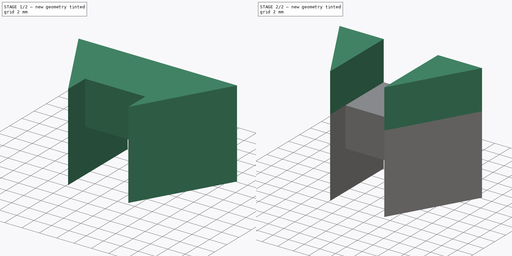
[diagram: build sequence overview — one tinted view per stage of 2, left to right]
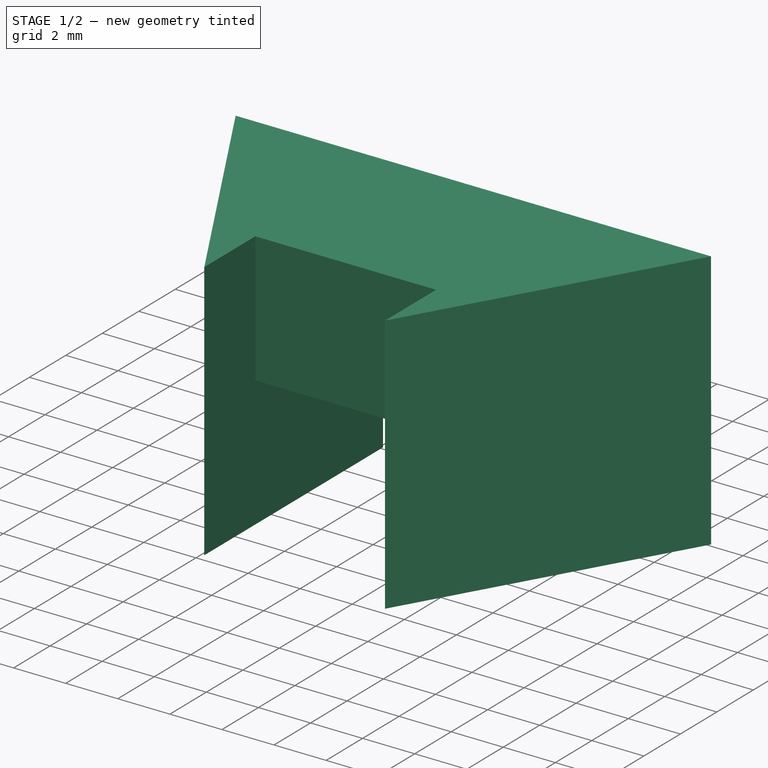
[diagram: stage 1 of 2 — iso view after this stage's code; geometry added in this stage tinted green]
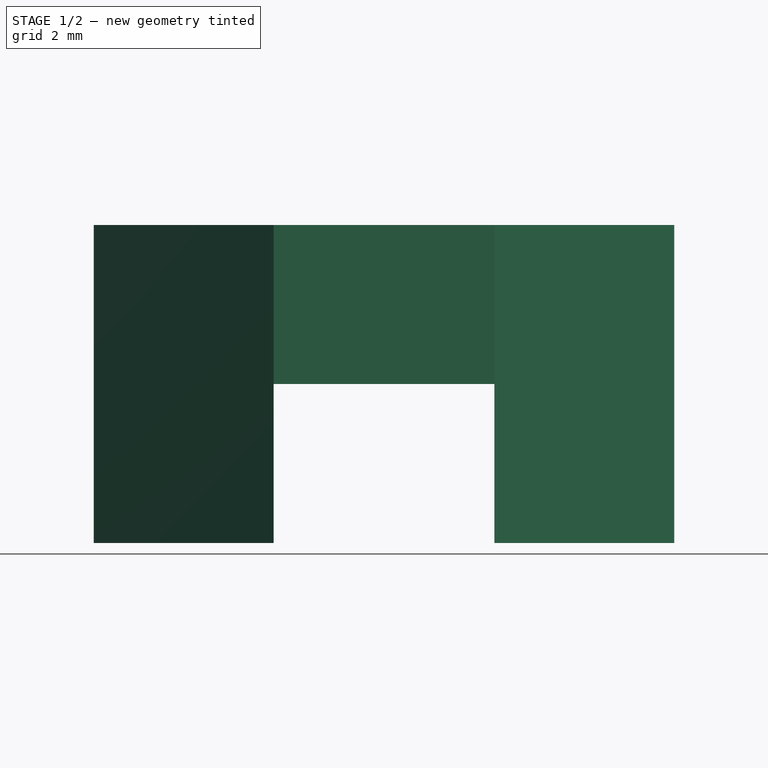
[diagram: stage 1 of 2 — front view after this stage's code; geometry added in this stage tinted green]
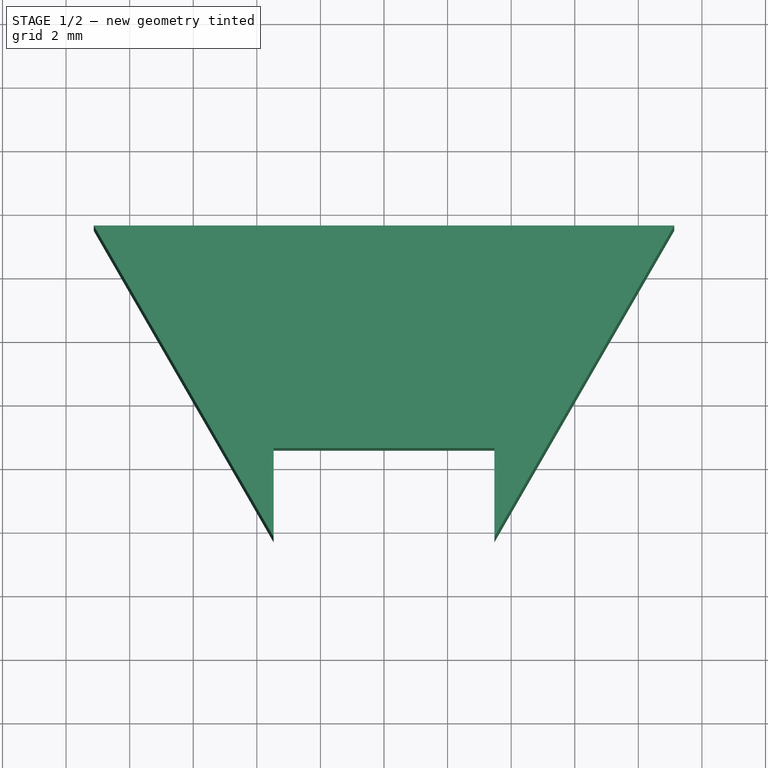
[diagram: stage 1 of 2 — top view after this stage's code; geometry added in this stage tinted green]
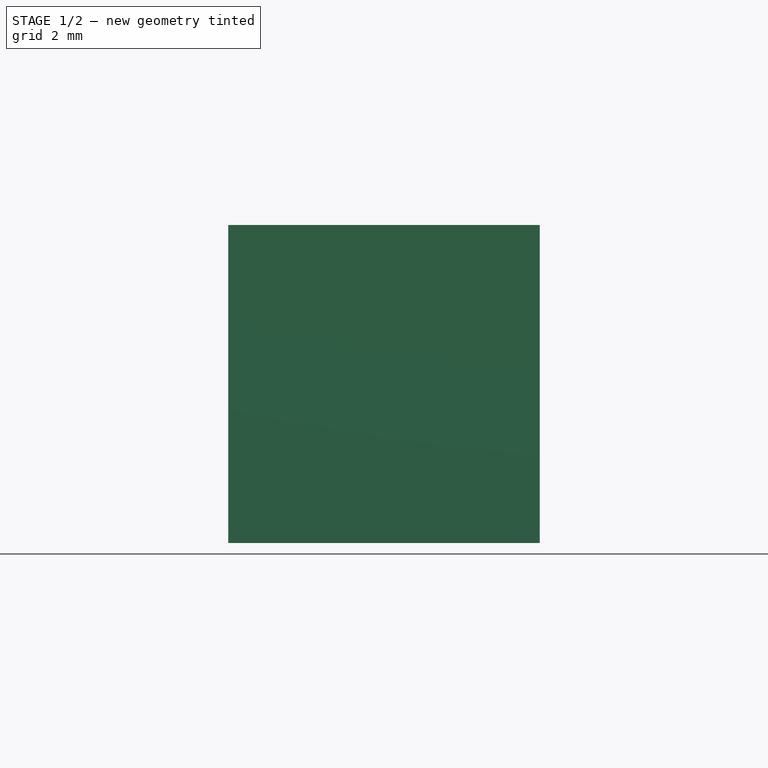
[diagram: stage 1 of 2 — right view after this stage's code; geometry added in this stage tinted green]
FCSTD DOCUMENT  (FreeCAD 0.19R24276 (Git))
Label: frame-links
License: All rights reserved
LicenseURL: http://en.wikipedia.org/wiki/All_rights_reserved
objects: Sketcher::SketchObject×3, PartDesign::Pad×3, PartDesign::Body×1
note: 10 computed .brp shape members not serialized (recipe doc carries the construction recipe); baked Part::Feature solids carry a one-line shape summary decoded from their .brp

FEATURE [Sketcher::SketchObject] Sketch
  FullyConstrained = true
  MapMode = 5
  Support = -> [XY_Plane]
  sketch-geometry (8):
    g0: LineSegment StartX=-3.47 StartY=-3.5 StartZ=0 EndX=3.47 EndY=-3.5 EndZ=0
    g1: LineSegment StartX=3.47 StartY=3.5 StartZ=0 EndX=-3.47 EndY=3.5 EndZ=0
    g2: LineSegment StartX=-9.12803 StartY=3.5 StartZ=0 EndX=-3.47 EndY=3.5 EndZ=0
    g3: LineSegment StartX=-9.12803 StartY=3.5 StartZ=0 EndX=-3.47 EndY=-6.3 EndZ=0
    g4: LineSegment StartX=-3.47 StartY=-6.3 StartZ=0 EndX=-3.47 EndY=-3.5 EndZ=0
    g5: LineSegment StartX=3.47 StartY=3.5 StartZ=0 EndX=9.12803 EndY=3.5 EndZ=0
    g6: LineSegment StartX=9.12803 StartY=3.5 StartZ=0 EndX=3.47 EndY=-6.3 EndZ=0
    g7: LineSegment StartX=3.47 StartY=-6.3 StartZ=0 EndX=3.47 EndY=-3.5 EndZ=0
  constraints (22):
    c: Horizontal(g1)
    c: Symmetric(g1,g0,g-1)
    c: Symmetric(g0,g0,g-2)
    c: DistanceX(g1,g1) = 6.94
    c: DistanceY(g0,g1) = 7
    c: Coincident(g2,g1)
    c: Horizontal(g2)
    c: Coincident(g3,g2)
    c: Coincident(g4,g0)
    c: Vertical(g4)
    c: Angle(g3,g2) = 1.0472
    c: Horizontal(g5)
    c: Coincident(g7,g0)
    c: Vertical(g7)
    c: Angle(g5,g6) = 1.0472
    c: Coincident(g6,g7)
    c: Coincident(g6,g5)
    c: Equal(g6,g3)
    c: Coincident(g3,g4)
    c: DistanceY(g4,g4) = 2.8
    c: Coincident(g1,g5)
    c: Equal(g0,g1)
FEATURE [PartDesign::Pad] Pad
  Direction = (1,1,1)
  Length = 5
  Length2 = 100
  Profile = -> Sketch
  Type = 0
FEATURE [Sketcher::SketchObject] Sketch001
  FullyConstrained = false
  MapMode = 5
  Placement = pos=(0,0,0) rot=(1,0,0;3.14159rad)
  Support = -> [Pad]
  sketch-geometry (6):
    g0: LineSegment StartX=-3.47 StartY=6.29992 StartZ=0 EndX=-9.12803 EndY=-3.50008 EndZ=0
    g1: LineSegment StartX=-3.47 StartY=6.29992 StartZ=0 EndX=-3.47 EndY=-3.50008 EndZ=0
    g2: LineSegment StartX=-3.47 StartY=-3.50008 StartZ=0 EndX=-9.12803 EndY=-3.50008 EndZ=0
    g3: LineSegment StartX=3.47 StartY=6.29992 StartZ=0 EndX=9.12803 EndY=-3.50008 EndZ=0
    g4: LineSegment StartX=3.47 StartY=6.29992 StartZ=0 EndX=3.47 EndY=-3.50008 EndZ=0
    g5: LineSegment StartX=3.47 StartY=-3.50008 StartZ=0 EndX=9.12803 EndY=-3.50008 EndZ=0
  constraints (16):
    c: Coincident(g1,g0)
    c: Vertical(g1)
    c: Coincident(g2,g0)
    c: Horizontal(g2)
    c: Coincident(g1,g2)
    c: Coincident(g4,g3)
    c: Vertical(g4)
    c: Coincident(g5,g3)
    c: Horizontal(g5)
    c: Coincident(g4,g5)
    c: Symmetric(g0,g3,g-2)
    c: Equal(g1,g4)
    c: Equal(g2,g5)
    c: DistanceY(g1,g1) = 9.8
    c: DistanceX(g0,g3) = 6.94
    c: Angle(g2,g0) = 1.0472
FEATURE [PartDesign::Pad] Pad001
  BaseFeature = -> Pad
  Direction = (1,1,1)
  Length = 5
  Length2 = 100
  Profile = -> Sketch001
  Type = 0
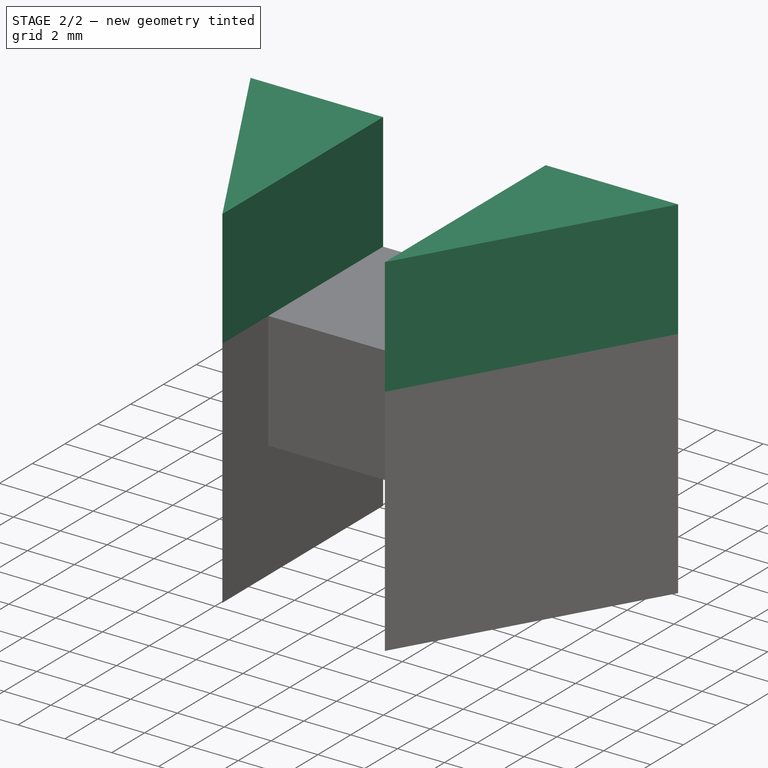
[diagram: stage 2 of 2 — iso view after this stage's code; geometry added in this stage tinted green]
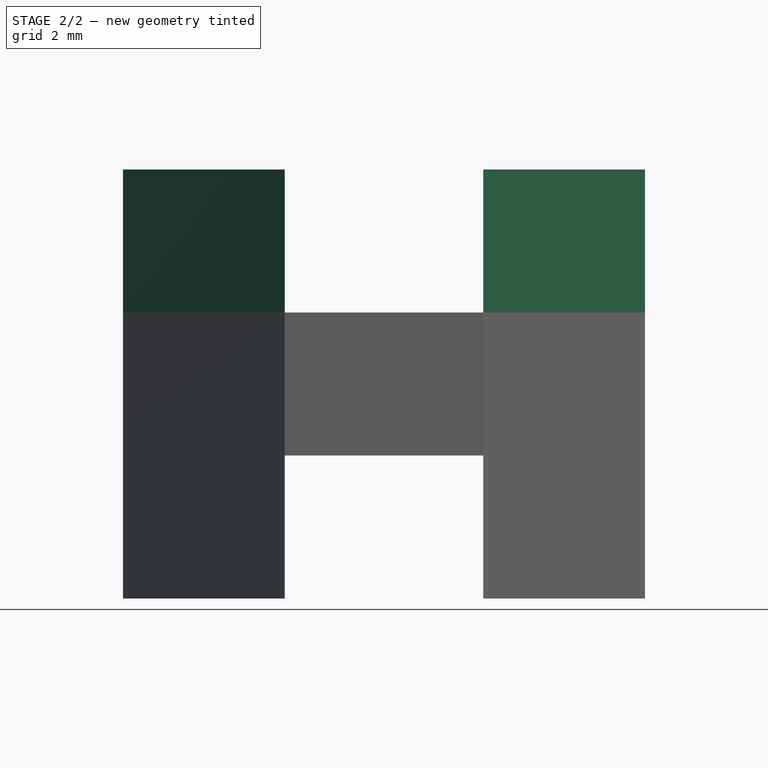
[diagram: stage 2 of 2 — front view after this stage's code; geometry added in this stage tinted green]
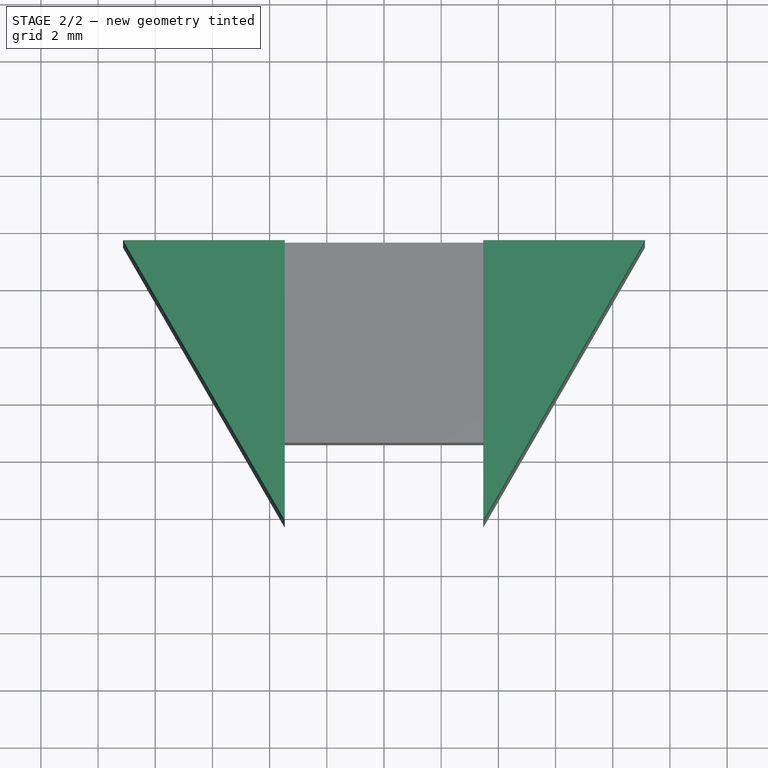
[diagram: stage 2 of 2 — top view after this stage's code; geometry added in this stage tinted green]
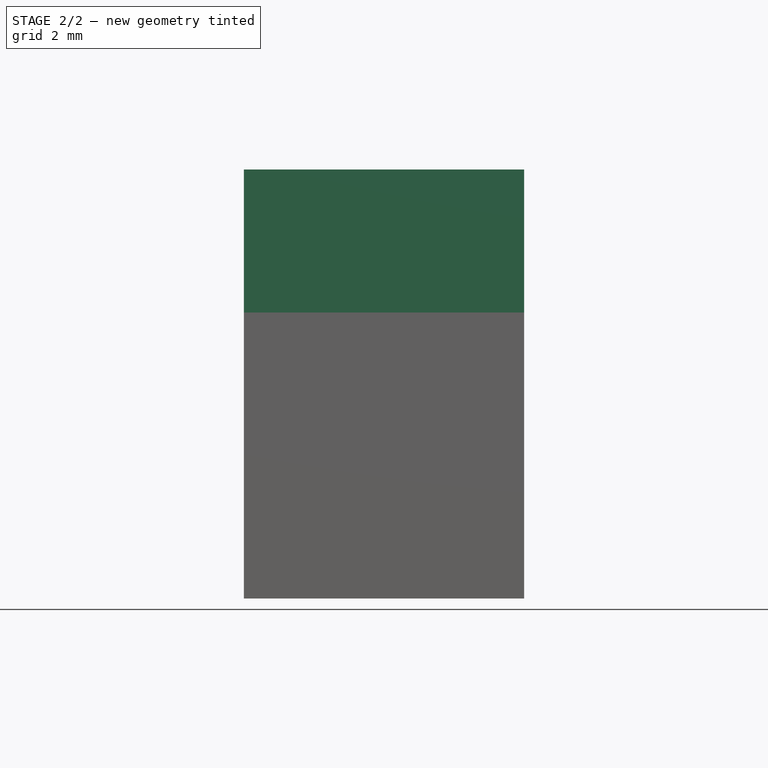
[diagram: stage 2 of 2 — right view after this stage's code; geometry added in this stage tinted green]
FEATURE [Sketcher::SketchObject] Sketch002
  FullyConstrained = false
  MapMode = 5
  Placement = pos=(0,0,5) rot=(0,0,1;0rad)
  Support = -> [Pad001]
  sketch-geometry (6):
    g0: LineSegment StartX=-9.12803 StartY=3.5003 StartZ=0 EndX=-3.47 EndY=-6.2997 EndZ=0
    g1: LineSegment StartX=-3.47 StartY=-6.2997 StartZ=0 EndX=-3.47 EndY=3.5003 EndZ=0
    g2: LineSegment StartX=-3.47 StartY=3.5003 StartZ=0 EndX=-9.12803 EndY=3.5003 EndZ=0
    g3: LineSegment StartX=3.47 StartY=-6.2997 StartZ=0 EndX=3.47 EndY=3.5003 EndZ=0
    g4: LineSegment StartX=3.47 StartY=3.5003 StartZ=0 EndX=9.12803 EndY=3.5003 EndZ=0
    g5: LineSegment StartX=9.12803 StartY=3.5003 StartZ=0 EndX=3.47 EndY=-6.2997 EndZ=0
  constraints (16):
    c: Coincident(g1,g0)
    c: Vertical(g1)
    c: Coincident(g2,g1)
    c: Coincident(g2,g0)
    c: Horizontal(g2)
    c: Vertical(g3)
    c: Coincident(g4,g3)
    c: Horizontal(g4)
    c: Coincident(g5,g3)
    c: Equal(g1,g3)
    c: Equal(g2,g4)
    c: Angle(g0,g2) = 1.0472
    c: Symmetric(g0,g3,g-2)
    c: DistanceX(g0,g3) = 6.94
    c: DistanceY(g1,g1) = 9.8
    c: Coincident(g5,g4)
FEATURE [PartDesign::Pad] Pad002
  BaseFeature = -> Pad001
  Direction = (1,1,1)
  Length = 5
  Length2 = 100
  Profile = -> Sketch002
  Type = 0
FEATURE [PartDesign::Body] Body
  Group = -> [Sketch,Pad,Sketch001,Pad001,Sketch002,Pad002]
  Origin = -> Origin
  Tip = -> Pad002
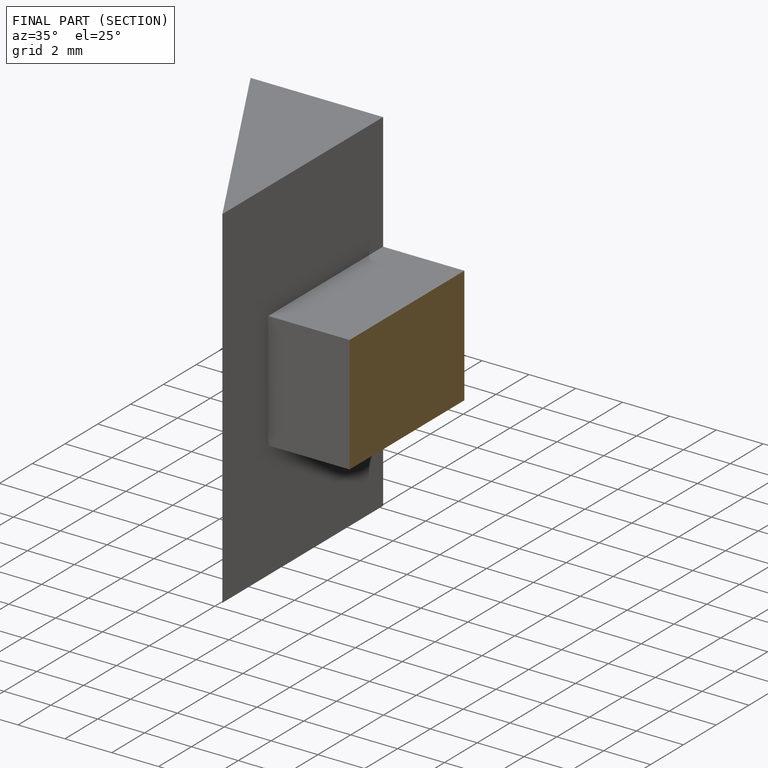
[diagram: finished part — half-section view (interior)]
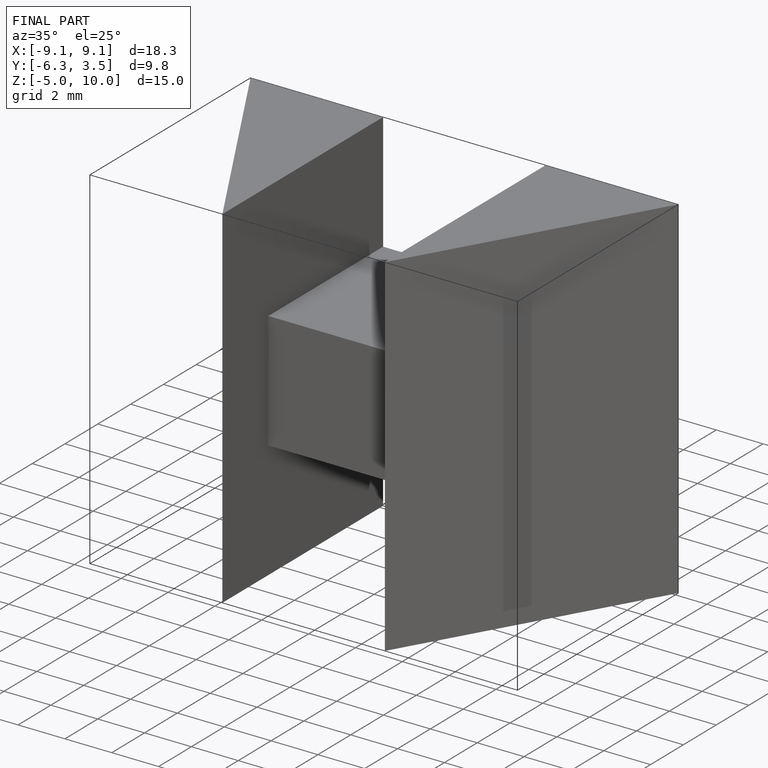
[diagram: finished part — iso view with bounding-box wireframe]
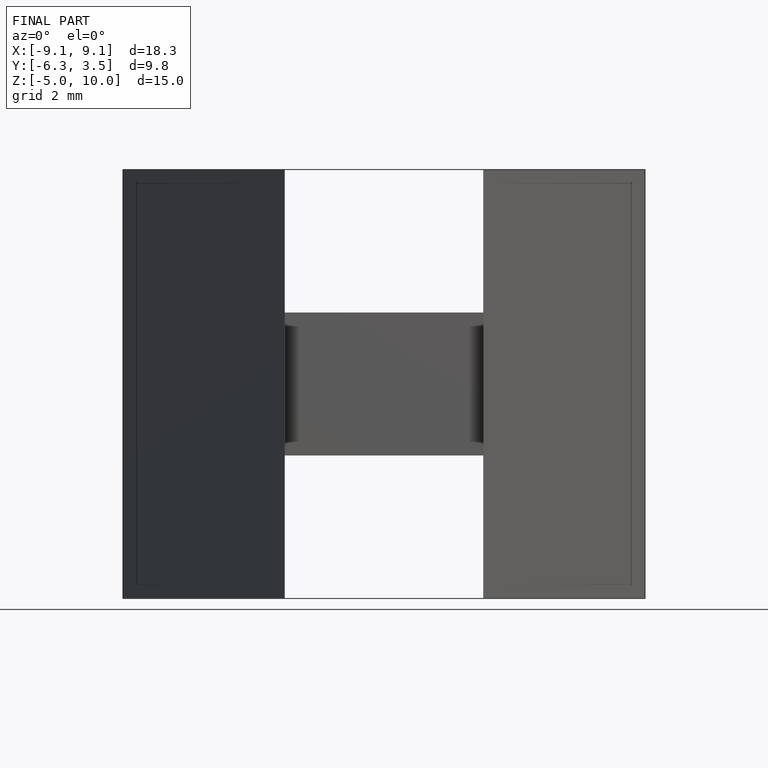
[diagram: finished part — front view with bounding-box wireframe]
